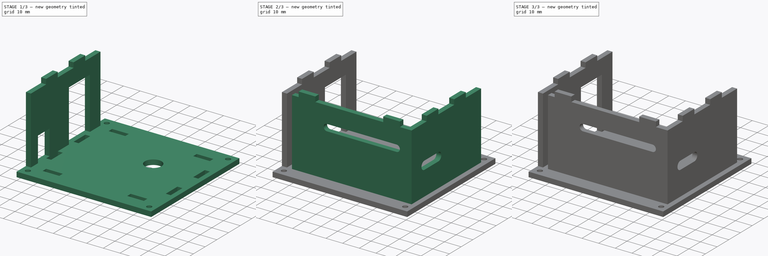
[diagram: build sequence overview — one tinted view per stage of 3, left to right]
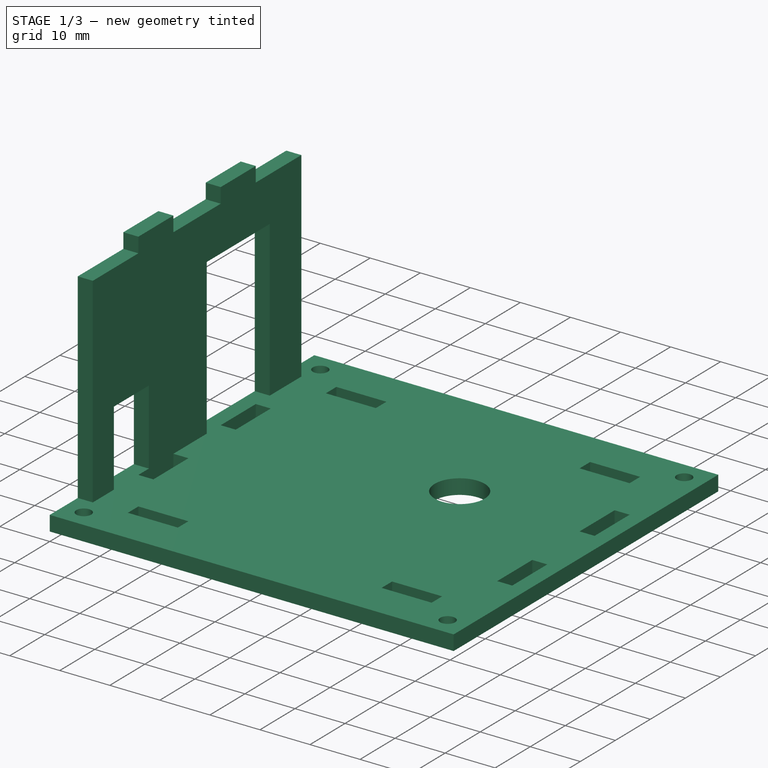
[diagram: stage 1 of 3 — iso view after this stage's code; geometry added in this stage tinted green]
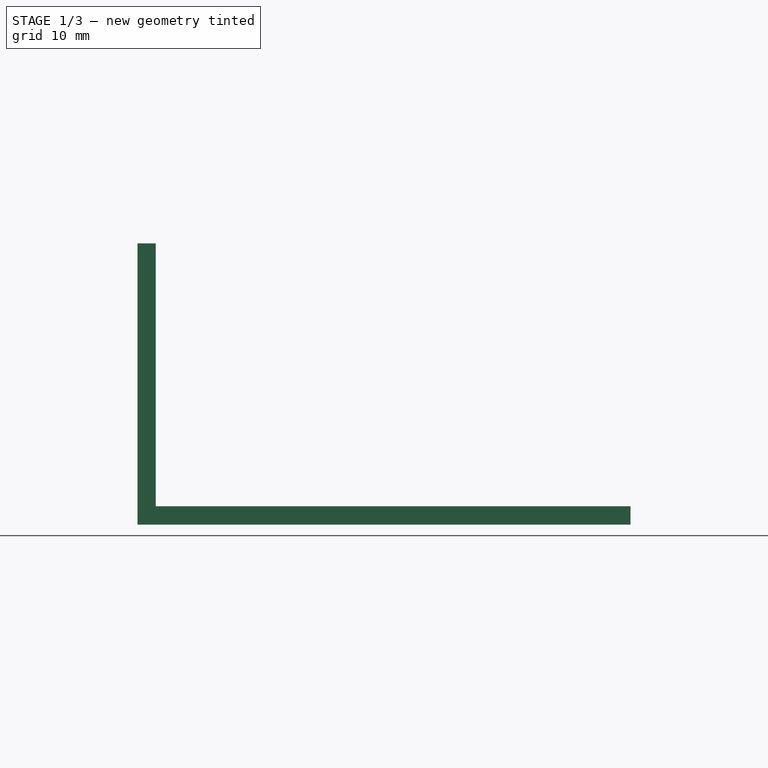
[diagram: stage 1 of 3 — front view after this stage's code; geometry added in this stage tinted green]
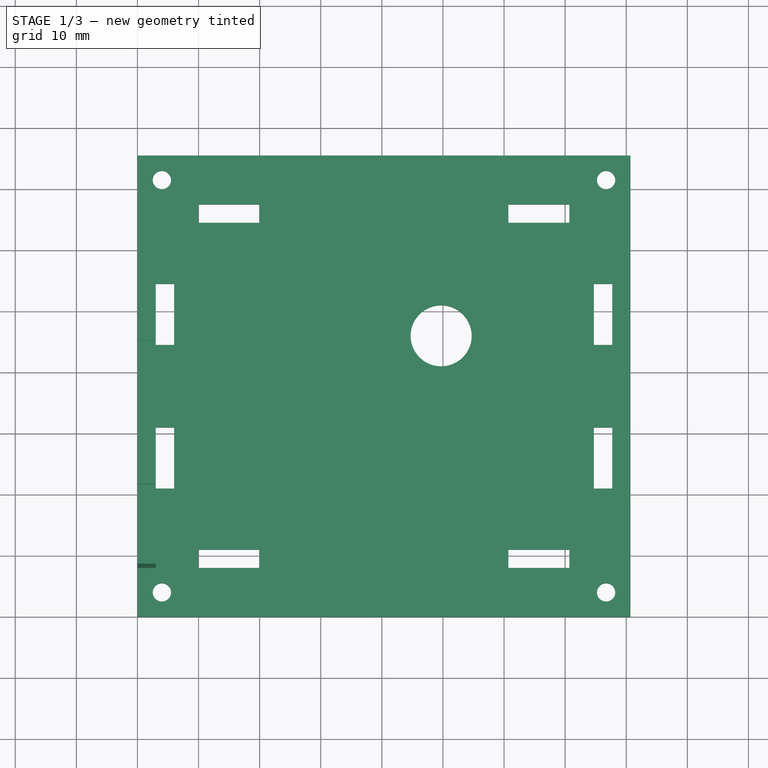
[diagram: stage 1 of 3 — top view after this stage's code; geometry added in this stage tinted green]
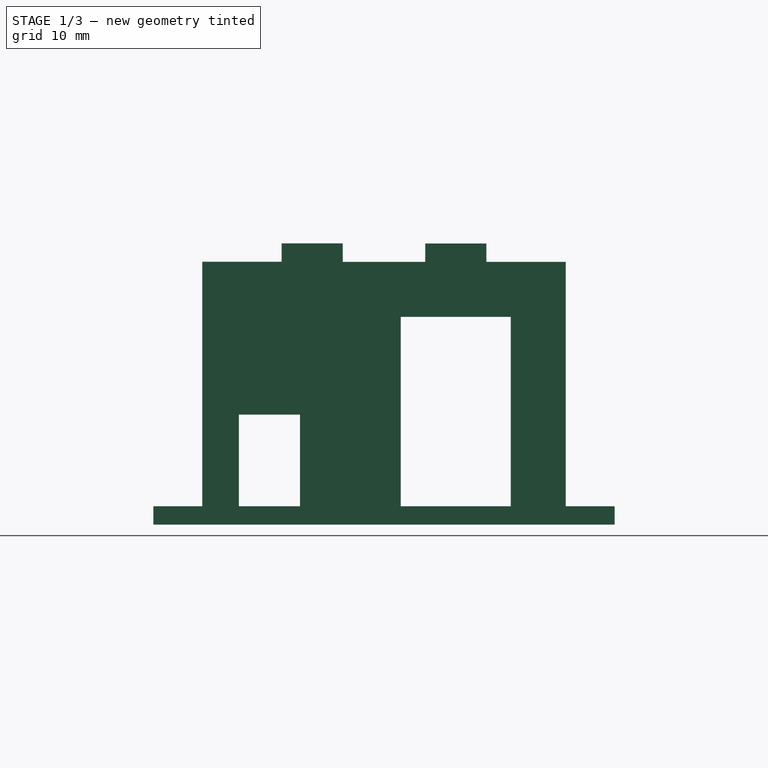
[diagram: stage 1 of 3 — right view after this stage's code; geometry added in this stage tinted green]
FCSTD DOCUMENT  (FreeCAD 0.19R24276 (Git))
Label: gateway_case
License: All rights reserved
LicenseURL: http://en.wikipedia.org/wiki/All_rights_reserved
objects: Sketcher::SketchObject×6, PartDesign::Pad×6, PartDesign::Body×6, App::MeasureDistance×3
note: 24 computed .brp shape members not serialized (recipe doc carries the construction recipe); baked Part::Feature solids carry a one-line shape summary decoded from their .brp

FEATURE [PartDesign::Body] Body003  label="back"
  Group = -> [Sketch003,Pad003]
  Origin = -> Origin003
  Tip = -> Pad003
FEATURE [Sketcher::SketchObject] Sketch004
  FullyConstrained = true
  MapMode = 5
  Support = -> [XY_Plane004]
  sketch-geometry (41):
    g0: Circle CenterX=4 CenterY=4 CenterZ=0 NormalX=0 NormalY=0 NormalZ=1 AngleXU=0 Radius=1.5
    g1: LineSegment StartX=10 StartY=8 StartZ=0 EndX=20 EndY=8 EndZ=0
    g2: LineSegment StartX=20 StartY=8 StartZ=0 EndX=20 EndY=11 EndZ=0
    g3: LineSegment StartX=20 StartY=11 StartZ=0 EndX=10 EndY=11 EndZ=0
    g4: LineSegment StartX=10 StartY=11 StartZ=0 EndX=10 EndY=8 EndZ=0
    g5: LineSegment StartX=3 StartY=31 StartZ=0 EndX=6 EndY=31 EndZ=0
    g6: LineSegment StartX=6 StartY=31 StartZ=0 EndX=6 EndY=21 EndZ=0
    g7: LineSegment StartX=6 StartY=21 StartZ=0 EndX=3 EndY=21 EndZ=0
    g8: LineSegment StartX=3 StartY=21 StartZ=0 EndX=3 EndY=31 EndZ=0
    g9: LineSegment StartX=10 StartY=67.5 StartZ=0 EndX=20 EndY=67.5 EndZ=0
    g10: LineSegment StartX=20 StartY=67.5 StartZ=0 EndX=20 EndY=64.5 EndZ=0
    g11: LineSegment StartX=20 StartY=64.5 StartZ=0 EndX=10 EndY=64.5 EndZ=0
    g12: LineSegment StartX=10 StartY=64.5 StartZ=0 EndX=10 EndY=67.5 EndZ=0
    g13: Circle CenterX=4 CenterY=71.5 CenterZ=0 NormalX=0 NormalY=0 NormalZ=1 AngleXU=0 Radius=1.5
    g14: LineSegment StartX=0 StartY=0 StartZ=0 EndX=80.7 EndY=0 EndZ=0
    g15: LineSegment StartX=80.7 StartY=0 StartZ=0 EndX=80.7 EndY=75.5 EndZ=0
    g16: LineSegment StartX=80.7 StartY=75.5 StartZ=0 EndX=0 EndY=75.5 EndZ=0
    g17: LineSegment StartX=0 StartY=75.5 StartZ=0 EndX=0 EndY=0 EndZ=0
    g18: LineSegment StartX=74.7 StartY=31 StartZ=0 EndX=77.7 EndY=31 EndZ=0
    g19: LineSegment StartX=77.7 StartY=31 StartZ=0 EndX=77.7 EndY=21 EndZ=0
    g20: LineSegment StartX=77.7 StartY=21 StartZ=0 EndX=74.7 EndY=21 EndZ=0
    g21: LineSegment StartX=74.7 StartY=21 StartZ=0 EndX=74.7 EndY=31 EndZ=0
    g22: Circle CenterX=76.7 CenterY=71.5 CenterZ=0 NormalX=0 NormalY=0 NormalZ=1 AngleXU=0 Radius=1.5
    g23: Circle CenterX=76.7 CenterY=4 CenterZ=0 NormalX=0 NormalY=0 NormalZ=1 AngleXU=0 Radius=1.5
    g24: LineSegment StartX=60.7 StartY=67.5 StartZ=0 EndX=70.7 EndY=67.5 EndZ=0
    g25: LineSegment StartX=70.7 StartY=67.5 StartZ=0 EndX=70.7 EndY=64.5 EndZ=0
    g26: LineSegment StartX=70.7 StartY=64.5 StartZ=0 EndX=60.7 EndY=64.5 EndZ=0
    g27: LineSegment StartX=60.7 StartY=64.5 StartZ=0 EndX=60.7 EndY=67.5 EndZ=0
    g28: LineSegment StartX=60.7 StartY=11 StartZ=0 EndX=70.7 EndY=11 EndZ=0
    g29: LineSegment StartX=70.7 StartY=11 StartZ=0 EndX=70.7 EndY=8 EndZ=0
    g30: LineSegment StartX=70.7 StartY=8 StartZ=0 EndX=60.7 EndY=8 EndZ=0
    g31: LineSegment StartX=60.7 StartY=8 StartZ=0 EndX=60.7 EndY=11 EndZ=0
    g32: LineSegment StartX=74.7 StartY=54.5 StartZ=0 EndX=77.7 EndY=54.5 EndZ=0
    g33: LineSegment StartX=77.7 StartY=54.5 StartZ=0 EndX=77.7 EndY=44.5 EndZ=0
    g34: LineSegment StartX=77.7 StartY=44.5 StartZ=0 EndX=74.7 EndY=44.5 EndZ=0
    g35: LineSegment StartX=74.7 StartY=44.5 StartZ=0 EndX=74.7 EndY=54.5 EndZ=0
    g36: LineSegment StartX=3 StartY=54.5 StartZ=0 EndX=6 EndY=54.5 EndZ=0
    g37: LineSegment StartX=6 StartY=54.5 StartZ=0 EndX=6 EndY=44.5 EndZ=0
    g38: LineSegment StartX=6 StartY=44.5 StartZ=0 EndX=3 EndY=44.5 EndZ=0
    g39: LineSegment StartX=3 StartY=44.5 StartZ=0 EndX=3 EndY=54.5 EndZ=0
    g40: Circle CenterX=49.7 CenterY=46 CenterZ=0 NormalX=0 NormalY=0 NormalZ=1 AngleXU=0 Radius=5
  constraints (122):
    c: Diameter(g0) = 3
    c: Coincident(g1,g2)
    c: Coincident(g2,g3)
    c: Coincident(g3,g4)
    c: Coincident(g4,g1)
    c: Horizontal(g1)
    c: Horizontal(g3)
    c: Vertical(g2)
    c: Vertical(g4)
    c: DistanceY(g1,g3) = 3
    c: DistanceY(g0,g1) = 4
    c: DistanceX(g1,g1) = 10
    c: DistanceX(g-1,g0) = 4
    c: DistanceX(g-1,g1) = 10
    c: DistanceY(g-1,g0) = 4
    c: Coincident(g5,g6)
    c: Coincident(g6,g7)
    c: Coincident(g7,g8)
    c: Coincident(g8,g5)
    c: Horizontal(g5)
    c: Horizontal(g7)
    c: Vertical(g6)
    c: Vertical(g8)
    c: DistanceX(g7,g6) = 3
    c: DistanceY(g7,g5) = 10
    c: DistanceX(g-1,g7) = 3
    c: DistanceY(g3,g7) = 10
    c: Coincident(g9,g10)
    c: Coincident(g10,g11)
    c: Coincident(g11,g12)
    c: Coincident(g12,g9)
    c: Horizontal(g9)
    c: Horizontal(g11)
    c: Vertical(g10)
    c: Vertical(g12)
    c: DistanceX(g11,g10) = 10
    c: DistanceY(g11,g9) = 3
    c: DistanceY(g3,g11) = 53.5  'arduino_width'
    c: Diameter(g13) = 3
    c: DistanceX(g-1,g11) = 10
    c: DistanceX(g-1,g13) = 4
    c: DistanceY(g9,g13) = 4
    c: Coincident(g14,g15)
    c: Coincident(g15,g16)
    c: Coincident(g16,g17)
    c: Coincident(g17,g14)
    c: Horizontal(g14)
    c: Horizontal(g16)
    c: Vertical(g15)
    c: Vertical(g17)
    c: Coincident(g14,g-1)
    c: DistanceY(g13,g16) = 4
    c: Coincident(g18,g19)
    c: Coincident(g19,g20)
    c: Coincident(g20,g21)
    c: Coincident(g21,g18)
    c: Horizontal(g18)
    c: Horizontal(g20)
    c: Vertical(g19)
    c: Vertical(g21)
    c: DistanceX(g20,g19) = 3
    c: DistanceY(g20,g18) = 10
    c: DistanceX(g6,g20) = 68.7  'arduino_length'
    c: DistanceX(g19,g14) = 3
    c: Coincident(g24,g25)
    c: Coincident(g25,g26)
    c: Coincident(g26,g27)
    c: Coincident(g27,g24)
    c: Horizontal(g24)
    c: Horizontal(g26)
    c: Vertical(g25)
    c: Vertical(g27)
    c: Coincident(g28,g29)
    c: Coincident(g29,g30)
    c: Coincident(g30,g31)
    c: Coincident(g31,g28)
    c: Horizontal(g28)
    c: Horizontal(g30)
    c: Vertical(g29)
    c: Vertical(g31)
    c: Diameter(g22) = 3
    c: Diameter(g23) = 3
    c: DistanceX(g22,g15) = 4
    c: DistanceY(g22,g15) = 4
    c: DistanceX(g23,g14) = 4
    c: DistanceY(g14,g23) = 4
    c: DistanceX(g30,g29) = 10
    c: DistanceY(g29,g28) = 3
    c: DistanceY(g23,g29) = 4
    c: DistanceX(g29,g14) = 10
    c: DistanceX(g26,g25) = 10
    c: DistanceY(g25,g24) = 3
    c: DistanceY(g24,g22) = 4
    c: DistanceX(g24,g15) = 10
    c: DistanceY(g28,g20) = 10
    c: Coincident(g32,g33)
    c: Coincident(g33,g34)
    c: Coincident(g34,g35)
    c: Coincident(g35,g32)
    c: Horizontal(g32)
    c: Horizontal(g34)
    c: Vertical(g33)
    c: Vertical(g35)
    c: DistanceX(g34,g33) = 3
    c: DistanceY(g33,g32) = 10
    c: DistanceX(g32,g15) = 3
    c: DistanceY(g32,g25) = 10
    c: Coincident(g36,g37)
    c: Coincident(g37,g38)
    c: Coincident(g38,g39)
    c: Coincident(g39,g36)
    c: Horizontal(g36)
    c: Horizontal(g38)
    c: Vertical(g37)
    c: Vertical(g39)
    c: DistanceX(g38,g37) = 3
    c: DistanceY(g37,g36) = 10
    c: DistanceY(g36,g11) = 10
    c: DistanceX(g14,g38) = 3
    c: DistanceY(g2,g40) = 35
    c: DistanceX(g40,g34) = 25
    c: Diameter(g40) = 10
FEATURE [PartDesign::Pad] Pad004
  Direction = (1,1,1)
  Length = 3
  Length2 = 100
  Profile = -> Sketch004
  Type = 0
FEATURE [PartDesign::Body] Body004  label="top"
  Group = -> [Sketch004,Pad004]
  Origin = -> Origin004
  Placement = pos=(0,0,43) rot=(0,0,1;0rad)
  Tip = -> Pad004
FEATURE [App::MeasureDistance] Distance  label="Distance: 40.00 mm"
  Distance = 40.0002
  P1 = (2.12659,0,3)
  P2 = (2.00769,0,43)
FEATURE [App::MeasureDistance] Distance001  label="Distance: 53.50 mm"
  Distance = 53.5005
  P1 = (15.0903,11,0)
  P2 = (15.3281,64.5,0)
FEATURE [Sketcher::SketchObject] Sketch005
  FullyConstrained = false
  MapMode = 5
  Placement = pos=(0,0,0) rot=(0.57735,0.57735,0.57735;2.0944rad)
  Support = -> [YZ_Plane005]
  sketch-geometry (24):
    g0: LineSegment StartX=8 StartY=3 StartZ=0 EndX=8 EndY=43.0201 EndZ=0
    g1: LineSegment StartX=8 StartY=43.0201 StartZ=0 EndX=21 EndY=43.0201 EndZ=0
    g2: LineSegment StartX=21 StartY=43.0201 StartZ=0 EndX=21 EndY=46.0201 EndZ=0
    g3: LineSegment StartX=21 StartY=46.0201 StartZ=0 EndX=31 EndY=46.0201 EndZ=0
    g4: LineSegment StartX=31 StartY=46.0201 StartZ=0 EndX=31 EndY=43 EndZ=0
    g5: LineSegment StartX=31 StartY=43 StartZ=0 EndX=44.5 EndY=43 EndZ=0
    g6: LineSegment StartX=44.5 StartY=43 StartZ=0 EndX=44.5 EndY=46 EndZ=0
    g7: LineSegment StartX=44.5 StartY=46 StartZ=0 EndX=54.5 EndY=46 EndZ=0
    g8: LineSegment StartX=54.5 StartY=46 StartZ=0 EndX=54.5 EndY=43 EndZ=0
    g9: LineSegment StartX=54.5 StartY=43 StartZ=0 EndX=67.5 EndY=43 EndZ=0
    g10: LineSegment StartX=67.5 StartY=43 StartZ=0 EndX=67.5 EndY=3 EndZ=0
    g11: LineSegment StartX=67.5 StartY=3 StartZ=0 EndX=58.5 EndY=3 EndZ=0
    g12: LineSegment StartX=58.5 StartY=3 StartZ=0 EndX=58.5 EndY=34 EndZ=0
    g13: LineSegment StartX=58.5 StartY=34 StartZ=0 EndX=40.5 EndY=34 EndZ=0
    g14: LineSegment StartX=40.5 StartY=34 StartZ=0 EndX=40.5 EndY=3 EndZ=0
    g15: LineSegment StartX=40.5 StartY=3 StartZ=0 EndX=37 EndY=3 EndZ=0
    g16: LineSegment StartX=37 StartY=3 StartZ=0 EndX=37 EndY=0 EndZ=0
    g17: LineSegment StartX=37 StartY=0 StartZ=0 EndX=27 EndY=0 EndZ=0
    g18: LineSegment StartX=27 StartY=0 StartZ=0 EndX=27 EndY=3 EndZ=0
    g19: LineSegment StartX=27 StartY=3 StartZ=0 EndX=24 EndY=3 EndZ=0
    g20: LineSegment StartX=24 StartY=3 StartZ=0 EndX=24 EndY=18 EndZ=0
    g21: LineSegment StartX=24 StartY=18 StartZ=0 EndX=14 EndY=18 EndZ=0
    g22: LineSegment StartX=14 StartY=18 StartZ=0 EndX=14 EndY=3 EndZ=0
    g23: LineSegment StartX=14 StartY=3 StartZ=0 EndX=8 EndY=3 EndZ=0
  constraints (71):
    c: Vertical(g0)
    c: Coincident(g0,g1)
    c: Horizontal(g1)
    c: Coincident(g1,g2)
    c: Vertical(g2)
    c: Coincident(g2,g3)
    c: Horizontal(g3)
    c: Coincident(g3,g4)
    c: Vertical(g4)
    c: Coincident(g4,g5)
    c: Horizontal(g5)
    c: Coincident(g5,g6)
    c: Vertical(g6)
    c: Coincident(g6,g7)
    c: Horizontal(g7)
    c: Coincident(g7,g8)
    c: Vertical(g8)
    c: Coincident(g8,g9)
    c: Horizontal(g9)
    c: Coincident(g9,g10)
    c: Vertical(g10)
    c: Coincident(g10,g11)
    c: Horizontal(g11)
    c: Coincident(g11,g12)
    c: Vertical(g12)
    c: Coincident(g12,g13)
    c: Horizontal(g13)
    c: Coincident(g13,g14)
    c: Vertical(g14)
    c: Coincident(g14,g15)
    c: Horizontal(g15)
    c: Coincident(g15,g16)
    c: PointOnObject(g16,g-1)
    c: Vertical(g16)
    c: Coincident(g16,g17)
    c: PointOnObject(g17,g-1)
    c: Coincident(g17,g18)
    c: Coincident(g18,g19)
    c: Horizontal(g19)
    c: Coincident(g19,g20)
    c: Vertical(g20)
    c: Coincident(g20,g21)
    c: Horizontal(g21)
    c: Coincident(g21,g22)
    c: Vertical(g22)
    c: Coincident(g22,g23)
    c: Coincident(g23,g0)
    c: Horizontal(g23)
    c: DistanceX(g-1,g0) = 8
    c: DistanceY(g-1,g0) = 3
    c: DistanceX(g0,g22) = 6
    c: DistanceY(g22,g21) = 15
    c: DistanceX(g21,g20) = 10
    c: DistanceY(g19,g20) = 15
    c: DistanceX(g19,g18) = 3
    c: DistanceX(g18,g17) = 0
    c: DistanceX(g17,g16) = 10
    c: DistanceY(g16,g15) = 3
    c: DistanceX(g13,g12) = 18
    c: DistanceX(g11,g10) = 9
    c: DistanceY(g10,g9) = 40
    c: DistanceY(g14,g13) = 31
    c: DistanceX(g0,g10) = 59.5
    c: DistanceY(g11,g12) = 31
    c: DistanceX(g8,g9) = 13
    c: DistanceY(g8,g7) = 3
    c: DistanceX(g6,g7) = 10
    c: DistanceY(g5,g6) = 3
    c: DistanceX(g0,g1) = 13
    c: DistanceY(g1,g2) = 3
    c: DistanceX(g2,g3) = 10
FEATURE [PartDesign::Pad] Pad005
  Direction = (1,1,1)
  Length = 3
  Length2 = 100
  Placement = pos=(0,0,0) rot=(0.57735,0.57735,0.57735;2.0944rad)
  Profile = -> Sketch005
  Type = 0
FEATURE [PartDesign::Body] Body005  label="front"
  Group = -> [Sketch005,Pad005]
  Origin = -> Origin005
  Placement = pos=(3,0,0) rot=(0,0,1;0rad)
  Tip = -> Pad005
FEATURE [App::MeasureDistance] Distance002  label="Distance: 68.70 mm"
  Distance = 68.7005
  P1 = (6,8,8.26362)
  P2 = (74.7,8,7.98929)
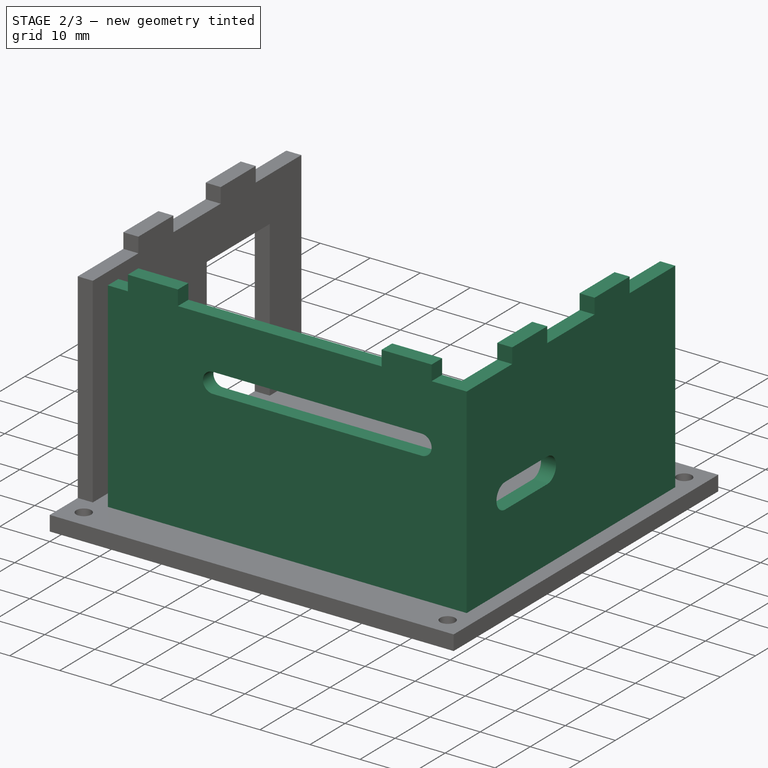
[diagram: stage 2 of 3 — iso view after this stage's code; geometry added in this stage tinted green]
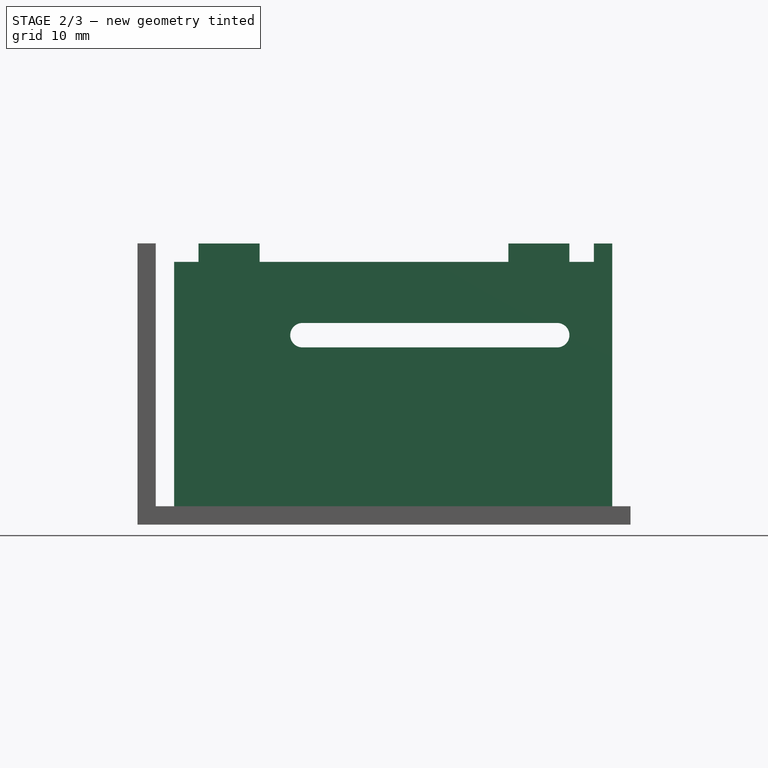
[diagram: stage 2 of 3 — front view after this stage's code; geometry added in this stage tinted green]
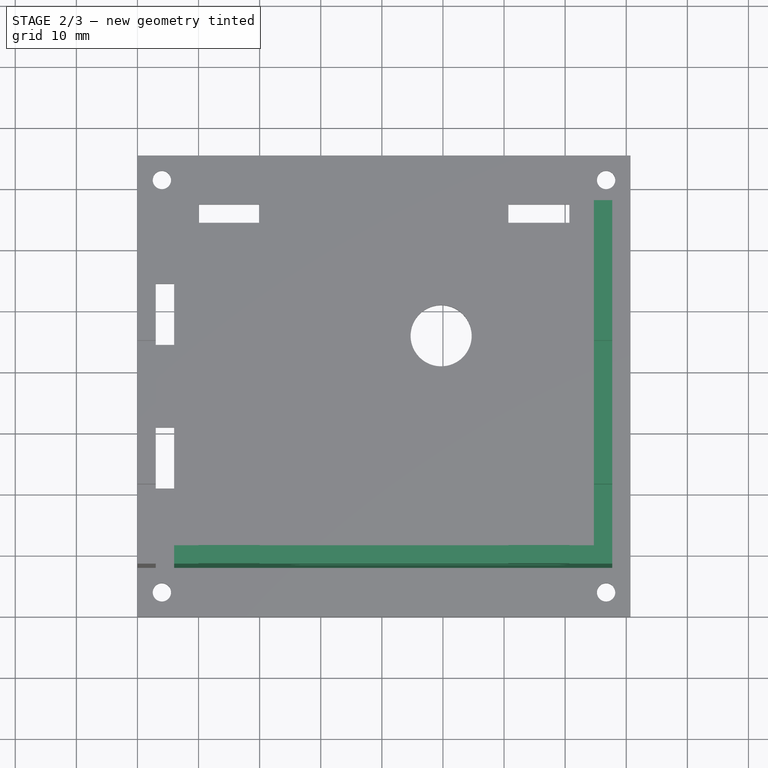
[diagram: stage 2 of 3 — top view after this stage's code; geometry added in this stage tinted green]
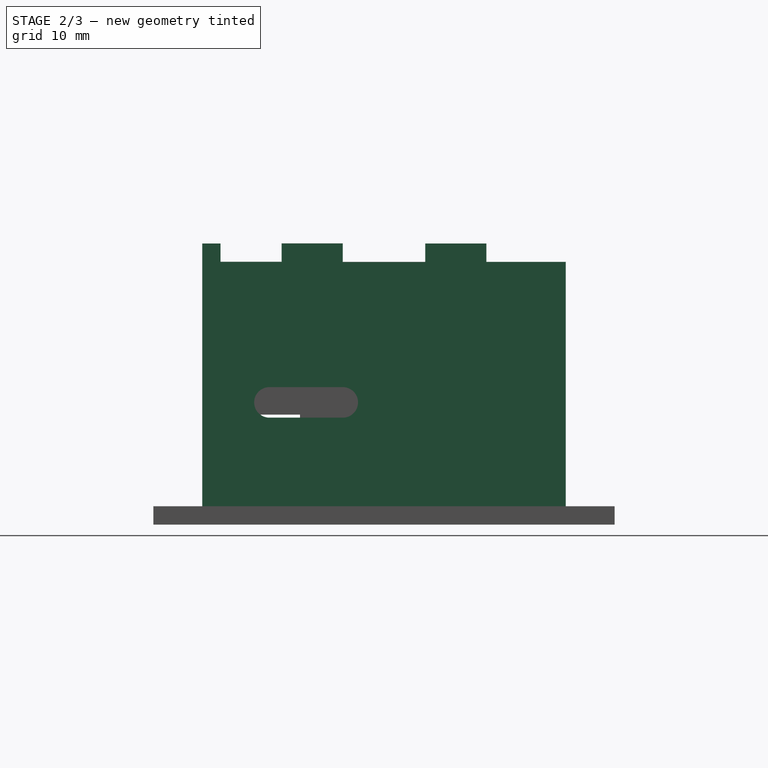
[diagram: stage 2 of 3 — right view after this stage's code; geometry added in this stage tinted green]
FEATURE [PartDesign::Body] Body001  label="bottom"
  Group = -> [Sketch,Pad]
  Origin = -> Origin001
  Tip = -> Pad
FEATURE [Sketcher::SketchObject] Sketch002
  AttachmentOffset = pos=(0,0,-11) rot=(0,0,1;0rad)
  FullyConstrained = true
  MapMode = 5
  Placement = pos=(0,11,2.4e-15) rot=(1,0,0;1.5708rad)
  Support = -> [XZ_Plane002]
  sketch-geometry (24):
    g0: LineSegment StartX=74.7 StartY=3 StartZ=0 EndX=74.7 EndY=43 EndZ=0
    g1: LineSegment StartX=6 StartY=43 StartZ=0 EndX=6 EndY=3 EndZ=0
    g2: ArcOfCircle CenterX=27 CenterY=31 CenterZ=0 NormalX=0 NormalY=0 NormalZ=1 AngleXU=0 Radius=2 StartAngle=1.5708 EndAngle=4.71239
    g3: ArcOfCircle CenterX=68.7 CenterY=31 CenterZ=0 NormalX=0 NormalY=0 NormalZ=1 AngleXU=0 Radius=2 StartAngle=4.71239 EndAngle=7.85398
    g4: LineSegment StartX=27 StartY=29 StartZ=0 EndX=68.7 EndY=29 EndZ=0
    g5: LineSegment StartX=27 StartY=33 StartZ=0 EndX=68.7 EndY=33 EndZ=0
    g6: LineSegment StartX=6 StartY=3 StartZ=0 EndX=10 EndY=3 EndZ=0
    g7: LineSegment StartX=10 StartY=3 StartZ=0 EndX=10 EndY=0 EndZ=0
    g8: LineSegment StartX=10 StartY=0 StartZ=0 EndX=20 EndY=0 EndZ=0
    g9: LineSegment StartX=20 StartY=0 StartZ=0 EndX=20 EndY=3 EndZ=0
    g10: LineSegment StartX=20 StartY=3 StartZ=0 EndX=60.7 EndY=3 EndZ=0
    g11: LineSegment StartX=60.7 StartY=3 StartZ=0 EndX=60.7 EndY=0 EndZ=0
    g12: LineSegment StartX=60.7 StartY=0 StartZ=0 EndX=70.7 EndY=0 EndZ=0
    g13: LineSegment StartX=70.7 StartY=0 StartZ=0 EndX=70.7 EndY=3 EndZ=0
    g14: LineSegment StartX=70.7 StartY=3 StartZ=0 EndX=74.7 EndY=3 EndZ=0
    g15: LineSegment StartX=6 StartY=43 StartZ=0 EndX=10 EndY=43 EndZ=0
    g16: LineSegment StartX=10 StartY=43 StartZ=0 EndX=10 EndY=46 EndZ=0
    g17: LineSegment StartX=10 StartY=46 StartZ=0 EndX=20 EndY=46 EndZ=0
    g18: LineSegment StartX=20 StartY=46 StartZ=0 EndX=20 EndY=43 EndZ=0
    g19: LineSegment StartX=20 StartY=43 StartZ=0 EndX=60.7 EndY=43 EndZ=0
    g20: LineSegment StartX=60.7 StartY=43 StartZ=0 EndX=60.7 EndY=46 EndZ=0
    g21: LineSegment StartX=60.7 StartY=46 StartZ=0 EndX=70.7 EndY=46 EndZ=0
    g22: LineSegment StartX=70.7 StartY=46 StartZ=0 EndX=70.7 EndY=43 EndZ=0
    g23: LineSegment StartX=70.7 StartY=43 StartZ=0 EndX=74.7 EndY=43 EndZ=0
  constraints (70):
    c: Vertical(g0)
    c: Vertical(g1)
    c: DistanceY(g1,g1) = 40
    c: DistanceY(g-1,g1) = 3
    c: DistanceX(g-1,g1) = 6
    c: Tangent(g2,g5) = 1.5708
    c: Tangent(g2,g4) = -1.5708
    c: Tangent(g4,g3) = -1.5708
    c: Tangent(g5,g3) = 1.5708
    c: Horizontal(g4)
    c: Equal(g2,g3)
    c: DistanceX(g1,g2) = 21
    c: DistanceX(g3,g0) = 6
    c: DistanceY(g0,g3) = 28
    c: DistanceY(g2,g2) = 2
    c: Coincident(g1,g6)
    c: Horizontal(g6)
    c: Coincident(g6,g7)
    c: Vertical(g7)
    c: Coincident(g7,g8)
    c: Horizontal(g8)
    c: Coincident(g8,g9)
    c: Vertical(g9)
    c: Coincident(g9,g10)
    c: Horizontal(g10)
    c: Coincident(g10,g11)
    c: Coincident(g11,g12)
    c: PointOnObject(g12,g-1)
    c: Horizontal(g12)
    c: Coincident(g12,g13)
    c: Coincident(g13,g14)
    c: Coincident(g14,g0)
    c: Horizontal(g14)
    c: DistanceX(g1,g6) = 4
    c: DistanceY(g7,g6) = 3
    c: DistanceX(g7,g8) = 10
    c: DistanceY(g8,g9) = 3
    c: DistanceX(g13,g0) = 4
    c: DistanceY(g12,g13) = 3
    c: DistanceX(g12,g13) = 0
    c: DistanceX(g11,g12) = 10
    c: DistanceX(g10,g13) = 10
    c: DistanceX(g1,g0) = 68.7
    c: Coincident(g1,g15)
    c: Horizontal(g15)
    c: Coincident(g15,g16)
    c: Coincident(g16,g17)
    c: Coincident(g17,g18)
    c: Vertical(g18)
    c: Coincident(g18,g19)
    c: Horizontal(g19)
    c: Coincident(g19,g20)
    c: Coincident(g20,g21)
    c: Horizontal(g21)
    c: Coincident(g21,g22)
    c: Coincident(g22,g23)
    c: Coincident(g23,g0)
    c: Horizontal(g23)
    c: DistanceX(g19,g22) = 10
    c: DistanceY(g19,g20) = 3
    c: DistanceX(g19,g20) = 0
    c: DistanceX(g21,g22) = 0
    c: DistanceY(g22,g21) = 3
    c: DistanceX(g22,g0) = 4
    c: DistanceX(g15,g18) = 10
    c: DistanceX(g15,g16) = 0
    c: DistanceX(g15,g1) = -4
    c: DistanceY(g15,g16) = 3
    c: DistanceY(g18,g17) = 3
    c: DistanceY(g0,g0) = 40
FEATURE [PartDesign::Pad] Pad002
  Direction = (1,1,1)
  Length = 3
  Length2 = 100
  Placement = pos=(0,0,0) rot=(1,0,0;1.5708rad)
  Profile = -> Sketch002
  Type = 0
FEATURE [PartDesign::Body] Body002  label="sideL"
  Group = -> [Sketch002,Pad002]
  Origin = -> Origin002
  Placement = pos=(0,56.5,0) rot=(0,0,1;0rad)
  Tip = -> Pad002
FEATURE [Sketcher::SketchObject] Sketch003
  AttachmentOffset = pos=(0,0,74.7) rot=(0,0,1;0rad)
  FullyConstrained = false
  MapMode = 5
  Placement = pos=(74.7,-1.66e-14,1.66e-14) rot=(0.57735,0.57735,0.57735;2.0944rad)
  Support = -> [YZ_Plane003]
  sketch-geometry (24):
    g0: LineSegment StartX=8 StartY=3 StartZ=0 EndX=21 EndY=3 EndZ=0
    g1: LineSegment StartX=21 StartY=3 StartZ=0 EndX=21 EndY=0 EndZ=0
    g2: LineSegment StartX=21 StartY=0 StartZ=0 EndX=31 EndY=0 EndZ=0
    g3: LineSegment StartX=31 StartY=0 StartZ=0 EndX=31 EndY=3 EndZ=0
    g4: LineSegment StartX=31 StartY=3 StartZ=0 EndX=44.5 EndY=3 EndZ=0
    g5: LineSegment StartX=44.5 StartY=3 StartZ=0 EndX=44.5 EndY=0 EndZ=0
    g6: LineSegment StartX=44.5 StartY=0 StartZ=0 EndX=54.5 EndY=0 EndZ=0
    g7: LineSegment StartX=54.5 StartY=0 StartZ=0 EndX=54.5 EndY=3 EndZ=0
    g8: LineSegment StartX=54.5 StartY=3 StartZ=0 EndX=67.5 EndY=3 EndZ=0
    g9: LineSegment StartX=67.5 StartY=3 StartZ=0 EndX=67.5 EndY=43 EndZ=0
    g10: LineSegment StartX=67.5 StartY=43 StartZ=0 EndX=54.5 EndY=43 EndZ=0
    g11: LineSegment StartX=54.5 StartY=43 StartZ=0 EndX=54.5 EndY=46 EndZ=0
    g12: LineSegment StartX=54.5 StartY=46 StartZ=0 EndX=44.5 EndY=46 EndZ=0
    g13: LineSegment StartX=44.5 StartY=46 StartZ=0 EndX=44.5 EndY=42.9668 EndZ=0
    g14: LineSegment StartX=44.5 StartY=42.9668 StartZ=0 EndX=31 EndY=42.9668 EndZ=0
    g15: LineSegment StartX=31 StartY=42.9668 StartZ=0 EndX=31 EndY=46.011 EndZ=0
    g16: LineSegment StartX=31 StartY=46.011 StartZ=0 EndX=21 EndY=46.011 EndZ=0
    g17: LineSegment StartX=21 StartY=46.011 StartZ=0 EndX=21 EndY=43 EndZ=0
    g18: LineSegment StartX=21 StartY=43 StartZ=0 EndX=8 EndY=43 EndZ=0
    g19: LineSegment StartX=8 StartY=43 StartZ=0 EndX=8 EndY=3 EndZ=0
    g20: ArcOfCircle CenterX=19 CenterY=20 CenterZ=0 NormalX=0 NormalY=0 NormalZ=1 AngleXU=0 Radius=2.5 StartAngle=1.5708 EndAngle=4.71239
    g21: ArcOfCircle CenterX=31 CenterY=20 CenterZ=0 NormalX=0 NormalY=0 NormalZ=1 AngleXU=0 Radius=2.5 StartAngle=4.71239 EndAngle=7.85398
    g22: LineSegment StartX=19 StartY=17.5 StartZ=0 EndX=31 EndY=17.5 EndZ=0
    g23: LineSegment StartX=19 StartY=22.5 StartZ=0 EndX=31 EndY=22.5 EndZ=0
  constraints (68):
    c: Horizontal(g0)
    c: Coincident(g0,g1)
    c: PointOnObject(g1,g-1)
    c: Vertical(g1)
    c: Coincident(g1,g2)
    c: PointOnObject(g2,g-1)
    c: Coincident(g2,g3)
    c: Vertical(g3)
    c: Coincident(g3,g4)
    c: Horizontal(g4)
    c: Coincident(g4,g5)
    c: PointOnObject(g5,g-1)
    c: Vertical(g5)
    c: Coincident(g5,g6)
    c: PointOnObject(g6,g-1)
    c: Coincident(g6,g7)
    c: Vertical(g7)
    c: Coincident(g7,g8)
    c: Horizontal(g8)
    c: Coincident(g8,g9)
    c: Vertical(g9)
    c: Coincident(g9,g10)
    c: Horizontal(g10)
    c: Coincident(g10,g11)
    c: Vertical(g11)
    c: Coincident(g11,g12)
    c: Horizontal(g12)
    c: Coincident(g12,g13)
    c: Vertical(g13)
    c: Coincident(g13,g14)
    c: Horizontal(g14)
    c: Coincident(g14,g15)
    c: Coincident(g15,g16)
    c: Horizontal(g16)
    c: Coincident(g16,g17)
    c: Vertical(g17)
    c: Coincident(g17,g18)
    c: Horizontal(g18)
    c: Coincident(g18,g19)
    c: Coincident(g19,g0)
    c: Vertical(g19)
    c: DistanceY(g-1,g0) = 3
    c: DistanceX(g-1,g0) = 8
    c: DistanceX(g0,g0) = 13
    c: DistanceX(g1,g2) = 10
    c: DistanceY(g2,g3) = 3
    c: DistanceX(g0,g8) = 59.5
    c: DistanceX(g7,g8) = 13
    c: DistanceX(g5,g6) = 10
    c: DistanceY(g6,g7) = 3
    c: DistanceY(g8,g9) = 40
    c: DistanceX(g10,g9) = 13
    c: DistanceY(g10,g11) = 3
    c: DistanceX(g13,g10) = 10
    c: DistanceY(g0,g18) = 40
    c: DistanceX(g18,g17) = 13
    c: DistanceX(g17,g14) = 10
    c: DistanceX(g16,g15) = 10
    c: Tangent(g20,g23) = 1.5708
    c: Tangent(g20,g22) = -1.5708
    c: Tangent(g22,g21) = -1.5708
    c: Tangent(g23,g21) = 1.5708
    c: Horizontal(g22)
    c: Equal(g20,g21)
    c: DistanceY(g0,g20) = 17
    c: DistanceX(g0,g20) = 11
    c: DistanceX(g20,g21) = 12
    c: DistanceY(g20,g20) = 2.5
FEATURE [PartDesign::Pad] Pad003
  Direction = (1,1,1)
  Length = 3
  Length2 = 100
  Placement = pos=(0,0,0) rot=(0.57735,0.57735,0.57735;2.0944rad)
  Profile = -> Sketch003
  Type = 0
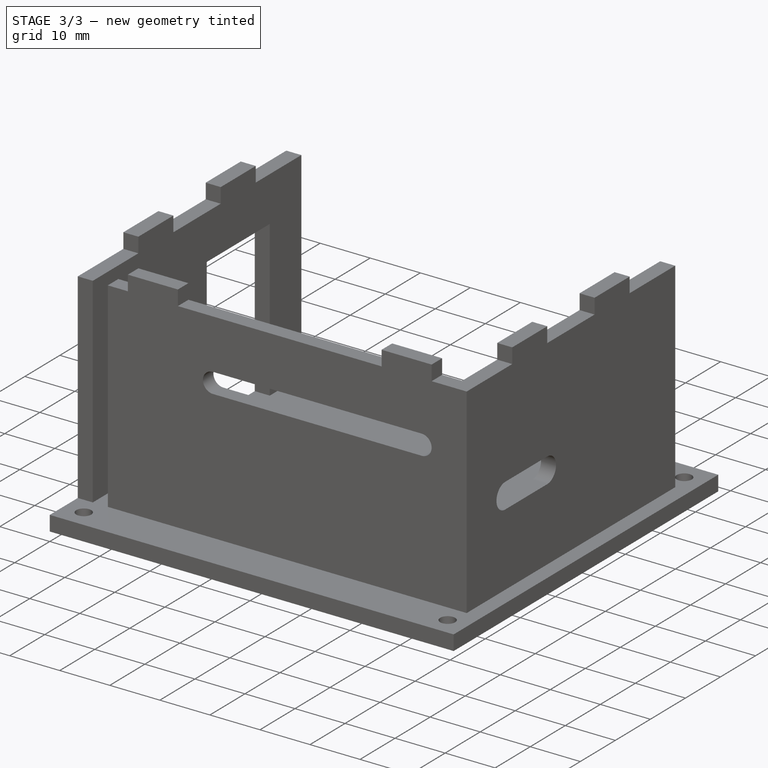
[diagram: stage 3 of 3 — iso view after this stage's code; geometry added in this stage tinted green]
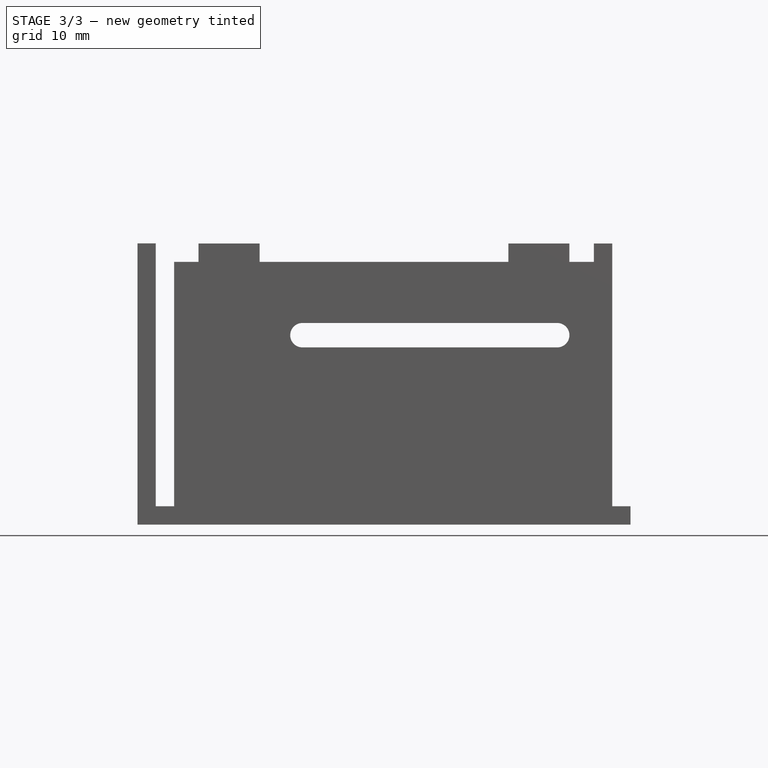
[diagram: stage 3 of 3 — front view after this stage's code; geometry added in this stage tinted green]
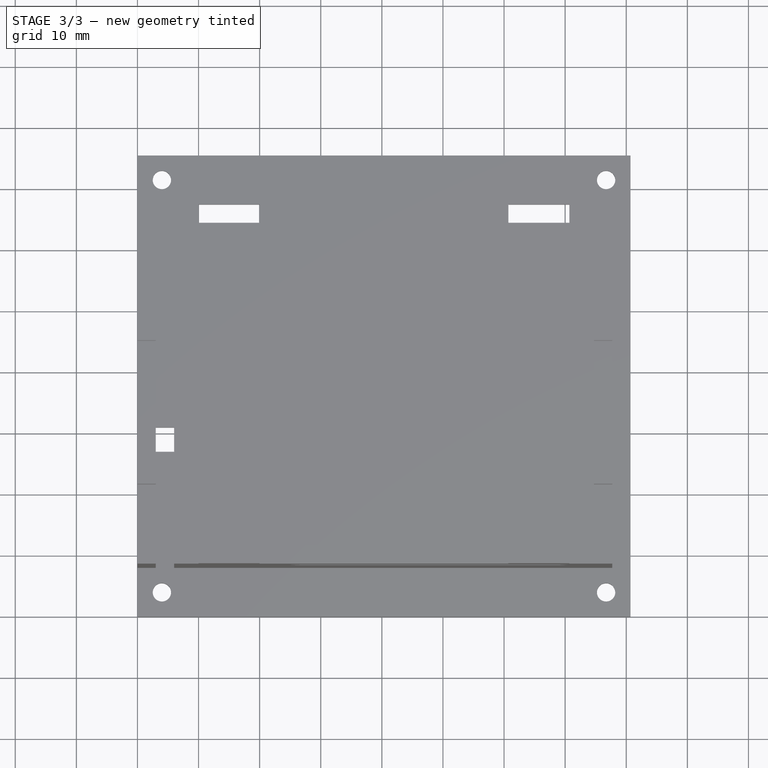
[diagram: stage 3 of 3 — top view after this stage's code; geometry added in this stage tinted green]
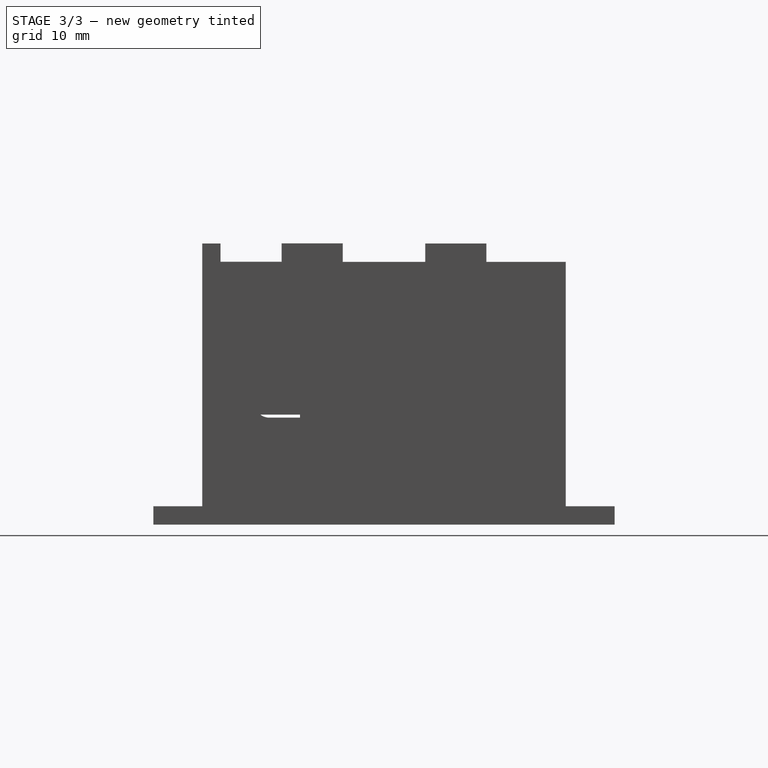
[diagram: stage 3 of 3 — right view after this stage's code; geometry added in this stage tinted green]
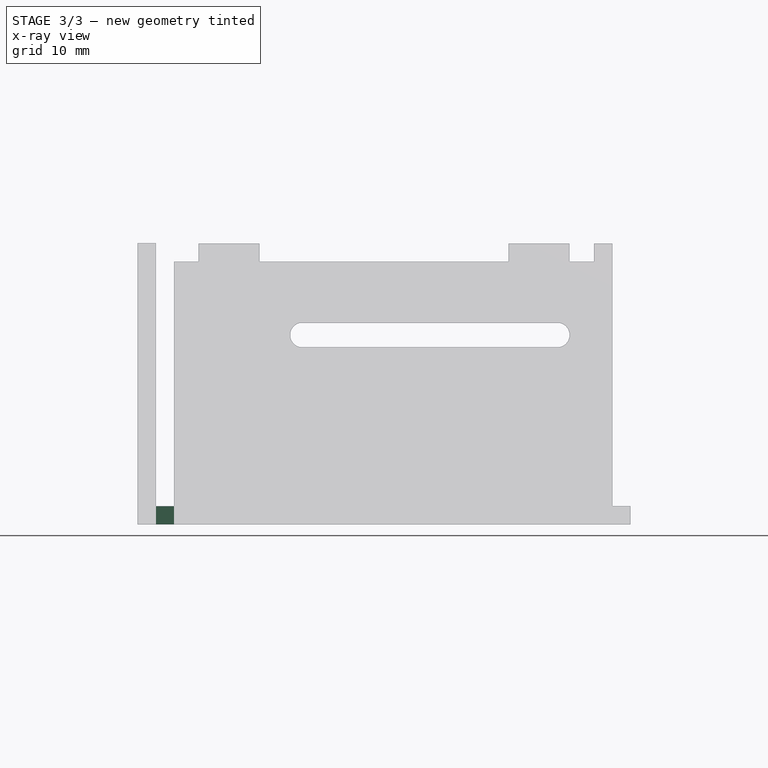
[diagram: stage 3 of 3 — x-ray composite at the front view; earlier geometry ghosted, this stage's added geometry solid]
FEATURE [Sketcher::SketchObject] Sketch
  FullyConstrained = true
  MapMode = 5
  Support = -> [XY_Plane001]
  sketch-geometry (36):
    g0: Circle CenterX=4 CenterY=4 CenterZ=0 NormalX=0 NormalY=0 NormalZ=1 AngleXU=0 Radius=1.5
    g1: LineSegment StartX=10 StartY=8 StartZ=0 EndX=20 EndY=8 EndZ=0
    g2: LineSegment StartX=20 StartY=8 StartZ=0 EndX=20 EndY=11 EndZ=0
    g3: LineSegment StartX=20 StartY=11 StartZ=0 EndX=10 EndY=11 EndZ=0
    g4: LineSegment StartX=10 StartY=11 StartZ=0 EndX=10 EndY=8 EndZ=0
    g5: LineSegment StartX=3 StartY=37 StartZ=0 EndX=6 EndY=37 EndZ=0
    g6: LineSegment StartX=6 StartY=37 StartZ=0 EndX=6 EndY=27 EndZ=0
    g7: LineSegment StartX=6 StartY=27 StartZ=0 EndX=3 EndY=27 EndZ=0
    g8: LineSegment StartX=3 StartY=27 StartZ=0 EndX=3 EndY=37 EndZ=0
    g9: LineSegment StartX=10 StartY=67.5 StartZ=0 EndX=20 EndY=67.5 EndZ=0
    g10: LineSegment StartX=20 StartY=67.5 StartZ=0 EndX=20 EndY=64.5 EndZ=0
    g11: LineSegment StartX=20 StartY=64.5 StartZ=0 EndX=10 EndY=64.5 EndZ=0
    g12: LineSegment StartX=10 StartY=64.5 StartZ=0 EndX=10 EndY=67.5 EndZ=0
    g13: Circle CenterX=4 CenterY=71.5 CenterZ=0 NormalX=0 NormalY=0 NormalZ=1 AngleXU=0 Radius=1.5
    g14: LineSegment StartX=0 StartY=0 StartZ=0 EndX=80.7 EndY=0 EndZ=0
    g15: LineSegment StartX=80.7 StartY=0 StartZ=0 EndX=80.7 EndY=75.5 EndZ=0
    g16: LineSegment StartX=80.7 StartY=75.5 StartZ=0 EndX=0 EndY=75.5 EndZ=0
    g17: LineSegment StartX=0 StartY=75.5 StartZ=0 EndX=0 EndY=0 EndZ=0
    g18: LineSegment StartX=74.7 StartY=31 StartZ=0 EndX=77.7 EndY=31 EndZ=0
    g19: LineSegment StartX=77.7 StartY=31 StartZ=0 EndX=77.7 EndY=21 EndZ=0
    g20: LineSegment StartX=77.7 StartY=21 StartZ=0 EndX=74.7 EndY=21 EndZ=0
    g21: LineSegment StartX=74.7 StartY=21 StartZ=0 EndX=74.7 EndY=31 EndZ=0
    g22: Circle CenterX=76.7 CenterY=71.5 CenterZ=0 NormalX=0 NormalY=0 NormalZ=1 AngleXU=0 Radius=1.5
    g23: Circle CenterX=76.7 CenterY=4 CenterZ=0 NormalX=0 NormalY=0 NormalZ=1 AngleXU=0 Radius=1.5
    g24: LineSegment StartX=60.7 StartY=67.5 StartZ=0 EndX=70.7 EndY=67.5 EndZ=0
    g25: LineSegment StartX=70.7 StartY=67.5 StartZ=0 EndX=70.7 EndY=64.5 EndZ=0
    g26: LineSegment StartX=70.7 StartY=64.5 StartZ=0 EndX=60.7 EndY=64.5 EndZ=0
    g27: LineSegment StartX=60.7 StartY=64.5 StartZ=0 EndX=60.7 EndY=67.5 EndZ=0
    g28: LineSegment StartX=60.7 StartY=11 StartZ=0 EndX=70.7 EndY=11 EndZ=0
    g29: LineSegment StartX=70.7 StartY=11 StartZ=0 EndX=70.7 EndY=8 EndZ=0
    g30: LineSegment StartX=70.7 StartY=8 StartZ=0 EndX=60.7 EndY=8 EndZ=0
    g31: LineSegment StartX=60.7 StartY=8 StartZ=0 EndX=60.7 EndY=11 EndZ=0
    g32: LineSegment StartX=74.7 StartY=54.5 StartZ=0 EndX=77.7 EndY=54.5 EndZ=0
    g33: LineSegment StartX=77.7 StartY=54.5 StartZ=0 EndX=77.7 EndY=44.5 EndZ=0
    g34: LineSegment StartX=77.7 StartY=44.5 StartZ=0 EndX=74.7 EndY=44.5 EndZ=0
    g35: LineSegment StartX=74.7 StartY=44.5 StartZ=0 EndX=74.7 EndY=54.5 EndZ=0
  constraints (107):
    c: Diameter(g0) = 3
    c: Coincident(g1,g2)
    c: Coincident(g2,g3)
    c: Coincident(g3,g4)
    c: Coincident(g4,g1)
    c: Horizontal(g1)
    c: Horizontal(g3)
    c: Vertical(g2)
    c: Vertical(g4)
    c: DistanceY(g1,g3) = 3
    c: DistanceY(g0,g1) = 4
    c: DistanceX(g1,g1) = 10
    c: DistanceX(g-1,g0) = 4
    c: DistanceX(g-1,g1) = 10
    c: DistanceY(g-1,g0) = 4
    c: Coincident(g5,g6)
    c: Coincident(g6,g7)
    c: Coincident(g7,g8)
    c: Coincident(g8,g5)
    c: Horizontal(g5)
    c: Horizontal(g7)
    c: Vertical(g6)
    c: Vertical(g8)
    c: DistanceX(g7,g6) = 3
    c: DistanceY(g7,g5) = 10
    c: DistanceX(g-1,g7) = 3
    c: DistanceY(g3,g7) = 16
    c: Coincident(g9,g10)
    c: Coincident(g10,g11)
    c: Coincident(g11,g12)
    c: Coincident(g12,g9)
    c: Horizontal(g9)
    c: Horizontal(g11)
    c: Vertical(g10)
    c: Vertical(g12)
    c: DistanceX(g11,g10) = 10
    c: DistanceY(g11,g9) = 3
    c: DistanceY(g3,g11) = 53.5  'arduino_width'
    c: Diameter(g13) = 3
    c: DistanceX(g-1,g11) = 10
    c: DistanceX(g-1,g13) = 4
    c: DistanceY(g9,g13) = 4
    c: Coincident(g14,g15)
    c: Coincident(g15,g16)
    c: Coincident(g16,g17)
    c: Coincident(g17,g14)
    c: Horizontal(g14)
    c: Horizontal(g16)
    c: Vertical(g15)
    c: Vertical(g17)
    c: Coincident(g14,g-1)
    c: DistanceY(g13,g16) = 4
    c: Coincident(g18,g19)
    c: Coincident(g19,g20)
    c: Coincident(g20,g21)
    c: Coincident(g21,g18)
    c: Horizontal(g18)
    c: Horizontal(g20)
    c: Vertical(g19)
    c: Vertical(g21)
    c: DistanceX(g20,g19) = 3
    c: DistanceY(g20,g18) = 10
    c: DistanceX(g6,g20) = 68.7  'arduino_length'
    c: DistanceX(g19,g14) = 3
    c: Coincident(g24,g25)
    c: Coincident(g25,g26)
    c: Coincident(g26,g27)
    c: Coincident(g27,g24)
    c: Horizontal(g24)
    c: Horizontal(g26)
    c: Vertical(g25)
    c: Vertical(g27)
    c: Coincident(g28,g29)
    c: Coincident(g29,g30)
    c: Coincident(g30,g31)
    c: Coincident(g31,g28)
    c: Horizontal(g28)
    c: Horizontal(g30)
    c: Vertical(g29)
    c: Vertical(g31)
    c: Diameter(g22) = 3
    c: Diameter(g23) = 3
    c: DistanceX(g22,g15) = 4
    c: DistanceY(g22,g15) = 4
    c: DistanceX(g23,g14) = 4
    c: DistanceY(g14,g23) = 4
    c: DistanceX(g30,g29) = 10
    c: DistanceY(g29,g28) = 3
    c: DistanceY(g23,g29) = 4
    c: DistanceX(g29,g14) = 10
    c: DistanceX(g26,g25) = 10
    c: DistanceY(g25,g24) = 3
    c: DistanceY(g24,g22) = 4
    c: DistanceX(g24,g15) = 10
    c: DistanceY(g28,g20) = 10
    c: Coincident(g32,g33)
    c: Coincident(g33,g34)
    c: Coincident(g34,g35)
    c: Coincident(g35,g32)
    c: Horizontal(g32)
    c: Horizontal(g34)
    c: Vertical(g33)
    c: Vertical(g35)
    c: DistanceX(g34,g33) = 3
    c: DistanceY(g33,g32) = 10
    c: DistanceX(g32,g15) = 3
    c: DistanceY(g32,g25) = 10
FEATURE [Sketcher::SketchObject] Sketch001
  AttachmentOffset = pos=(0,0,-11) rot=(0,0,1;0rad)
  FullyConstrained = true
  MapMode = 5
  Placement = pos=(0,11,2.4e-15) rot=(1,0,0;1.5708rad)
  Support = -> [XZ_Plane]
  sketch-geometry (24):
    g0: LineSegment StartX=74.7 StartY=3 StartZ=0 EndX=74.7 EndY=43 EndZ=0
    g1: LineSegment StartX=6 StartY=43 StartZ=0 EndX=6 EndY=3 EndZ=0
    g2: ArcOfCircle CenterX=27 CenterY=31 CenterZ=0 NormalX=0 NormalY=0 NormalZ=1 AngleXU=0 Radius=2 StartAngle=1.5708 EndAngle=4.71239
    g3: ArcOfCircle CenterX=68.7 CenterY=31 CenterZ=0 NormalX=0 NormalY=0 NormalZ=1 AngleXU=0 Radius=2 StartAngle=4.71239 EndAngle=7.85398
    g4: LineSegment StartX=27 StartY=29 StartZ=0 EndX=68.7 EndY=29 EndZ=0
    g5: LineSegment StartX=27 StartY=33 StartZ=0 EndX=68.7 EndY=33 EndZ=0
    g6: LineSegment StartX=6 StartY=3 StartZ=0 EndX=10 EndY=3 EndZ=0
    g7: LineSegment StartX=10 StartY=3 StartZ=0 EndX=10 EndY=0 EndZ=0
    g8: LineSegment StartX=10 StartY=0 StartZ=0 EndX=20 EndY=0 EndZ=0
    g9: LineSegment StartX=20 StartY=0 StartZ=0 EndX=20 EndY=3 EndZ=0
    g10: LineSegment StartX=20 StartY=3 StartZ=0 EndX=60.7 EndY=3 EndZ=0
    g11: LineSegment StartX=60.7 StartY=3 StartZ=0 EndX=60.7 EndY=0 EndZ=0
    g12: LineSegment StartX=60.7 StartY=0 StartZ=0 EndX=70.7 EndY=0 EndZ=0
    g13: LineSegment StartX=70.7 StartY=0 StartZ=0 EndX=70.7 EndY=3 EndZ=0
    g14: LineSegment StartX=70.7 StartY=3 StartZ=0 EndX=74.7 EndY=3 EndZ=0
    g15: LineSegment StartX=6 StartY=43 StartZ=0 EndX=10 EndY=43 EndZ=0
    g16: LineSegment StartX=10 StartY=43 StartZ=0 EndX=10 EndY=46 EndZ=0
    g17: LineSegment StartX=10 StartY=46 StartZ=0 EndX=20 EndY=46 EndZ=0
    g18: LineSegment StartX=20 StartY=46 StartZ=0 EndX=20 EndY=43 EndZ=0
    g19: LineSegment StartX=20 StartY=43 StartZ=0 EndX=60.7 EndY=43 EndZ=0
    g20: LineSegment StartX=60.7 StartY=43 StartZ=0 EndX=60.7 EndY=46 EndZ=0
    g21: LineSegment StartX=60.7 StartY=46 StartZ=0 EndX=70.7 EndY=46 EndZ=0
    g22: LineSegment StartX=70.7 StartY=46 StartZ=0 EndX=70.7 EndY=43 EndZ=0
    g23: LineSegment StartX=70.7 StartY=43 StartZ=0 EndX=74.7 EndY=43 EndZ=0
  constraints (70):
    c: Vertical(g0)
    c: Vertical(g1)
    c: DistanceY(g1,g1) = 40
    c: DistanceY(g-1,g1) = 3
    c: DistanceX(g-1,g1) = 6
    c: Tangent(g2,g5) = 1.5708
    c: Tangent(g2,g4) = -1.5708
    c: Tangent(g4,g3) = -1.5708
    c: Tangent(g5,g3) = 1.5708
    c: Horizontal(g4)
    c: Equal(g2,g3)
    c: DistanceX(g1,g2) = 21
    c: DistanceX(g3,g0) = 6
    c: DistanceY(g0,g3) = 28
    c: DistanceY(g2,g2) = 2
    c: Coincident(g1,g6)
    c: Horizontal(g6)
    c: Coincident(g6,g7)
    c: Vertical(g7)
    c: Coincident(g7,g8)
    c: Horizontal(g8)
    c: Coincident(g8,g9)
    c: Vertical(g9)
    c: Coincident(g9,g10)
    c: Horizontal(g10)
    c: Coincident(g10,g11)
    c: Coincident(g11,g12)
    c: PointOnObject(g12,g-1)
    c: Horizontal(g12)
    c: Coincident(g12,g13)
    c: Coincident(g13,g14)
    c: Coincident(g14,g0)
    c: Horizontal(g14)
    c: DistanceX(g1,g6) = 4
    c: DistanceY(g7,g6) = 3
    c: DistanceX(g7,g8) = 10
    c: DistanceY(g8,g9) = 3
    c: DistanceX(g13,g0) = 4
    c: DistanceY(g12,g13) = 3
    c: DistanceX(g12,g13) = 0
    c: DistanceX(g11,g12) = 10
    c: DistanceX(g10,g13) = 10
    c: DistanceX(g1,g0) = 68.7
    c: Coincident(g1,g15)
    c: Horizontal(g15)
    c: Coincident(g15,g16)
    c: Coincident(g16,g17)
    c: Coincident(g17,g18)
    c: Vertical(g18)
    c: Coincident(g18,g19)
    c: Horizontal(g19)
    c: Coincident(g19,g20)
    c: Coincident(g20,g21)
    c: Horizontal(g21)
    c: Coincident(g21,g22)
    c: Coincident(g22,g23)
    c: Coincident(g23,g0)
    c: Horizontal(g23)
    c: DistanceX(g19,g22) = 10
    c: DistanceY(g19,g20) = 3
    c: DistanceX(g19,g20) = 0
    c: DistanceX(g21,g22) = 0
    c: DistanceY(g22,g21) = 3
    c: DistanceX(g22,g0) = 4
    c: DistanceX(g15,g18) = 10
    c: DistanceX(g15,g16) = 0
    c: DistanceX(g15,g1) = -4
    c: DistanceY(g15,g16) = 3
    c: DistanceY(g18,g17) = 3
    c: DistanceY(g0,g0) = 40
FEATURE [PartDesign::Pad] Pad001
  Direction = (1,1,1)
  Length = 3
  Length2 = 100
  Placement = pos=(0,0,0) rot=(1,0,0;1.5708rad)
  Profile = -> Sketch001
  Type = 0
FEATURE [PartDesign::Body] Body  label="sideR"
  Group = -> [Sketch001,Pad001]
  Origin = -> Origin
  Tip = -> Pad001
FEATURE [PartDesign::Pad] Pad
  Direction = (1,1,1)
  Length = 3
  Length2 = 100
  Profile = -> Sketch
  Type = 0
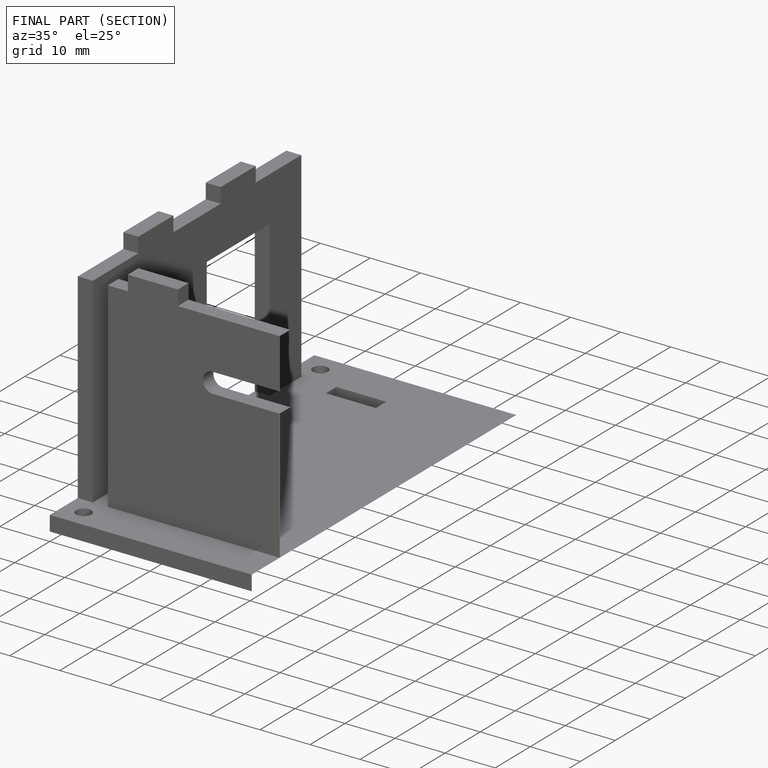
[diagram: finished part — half-section view (interior)]
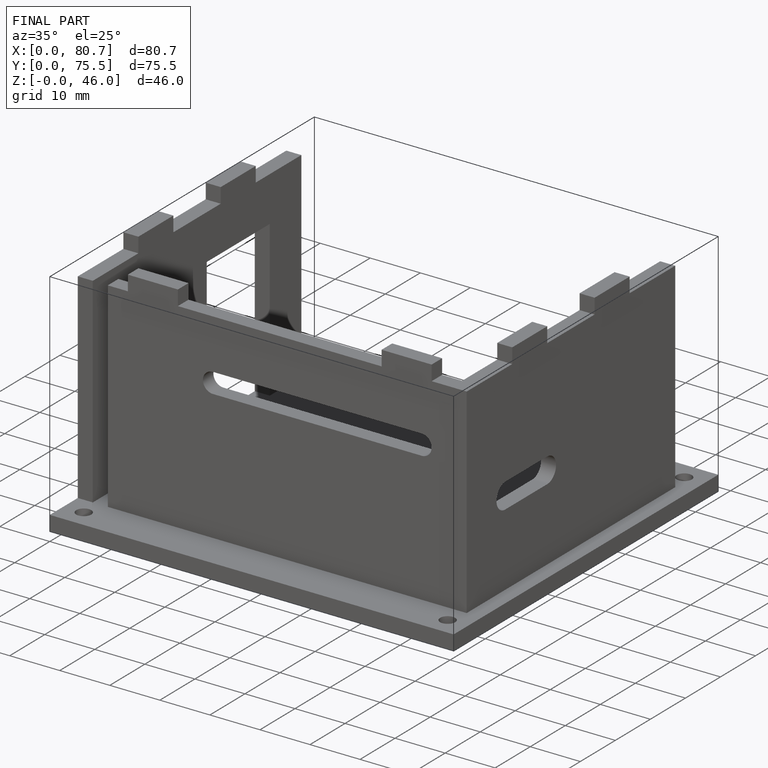
[diagram: finished part — iso view with bounding-box wireframe]
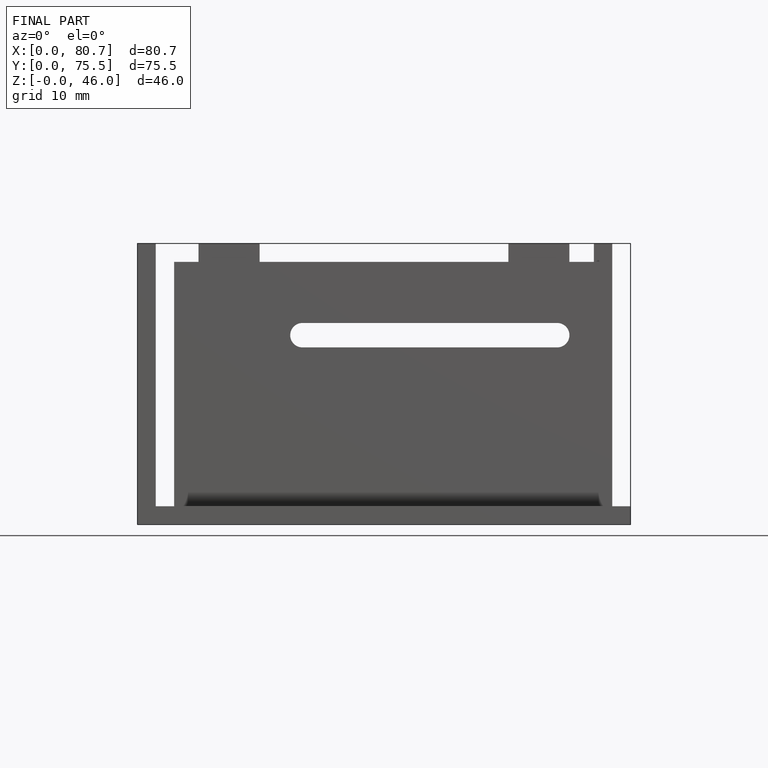
[diagram: finished part — front view with bounding-box wireframe]
